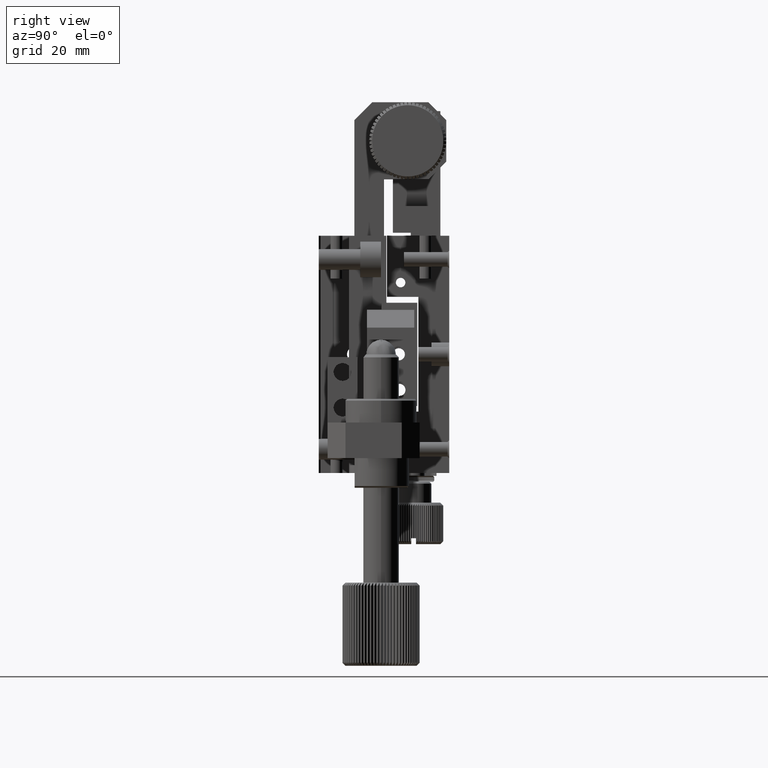
[diagram: clean part render]
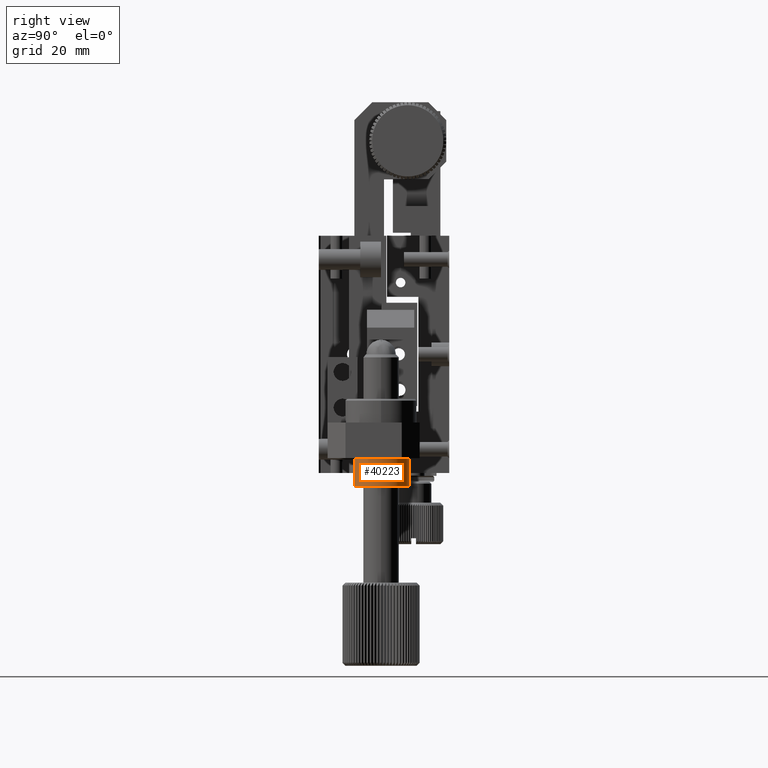
[diagram: same view with one face highlighted and labeled with its STEP entity id]
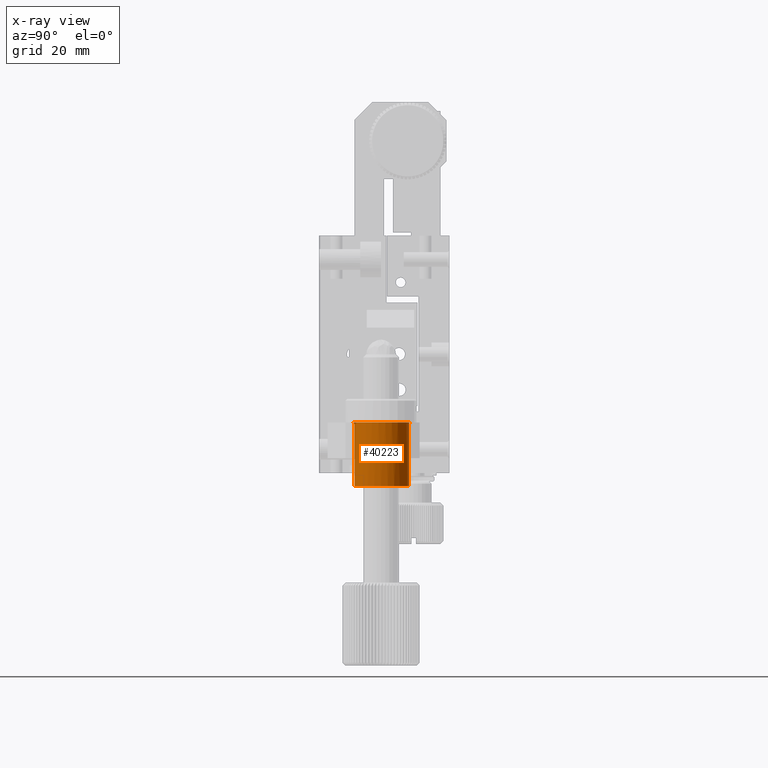
[diagram: x-ray of the same camera — body ghosted, the highlighted face saturated]
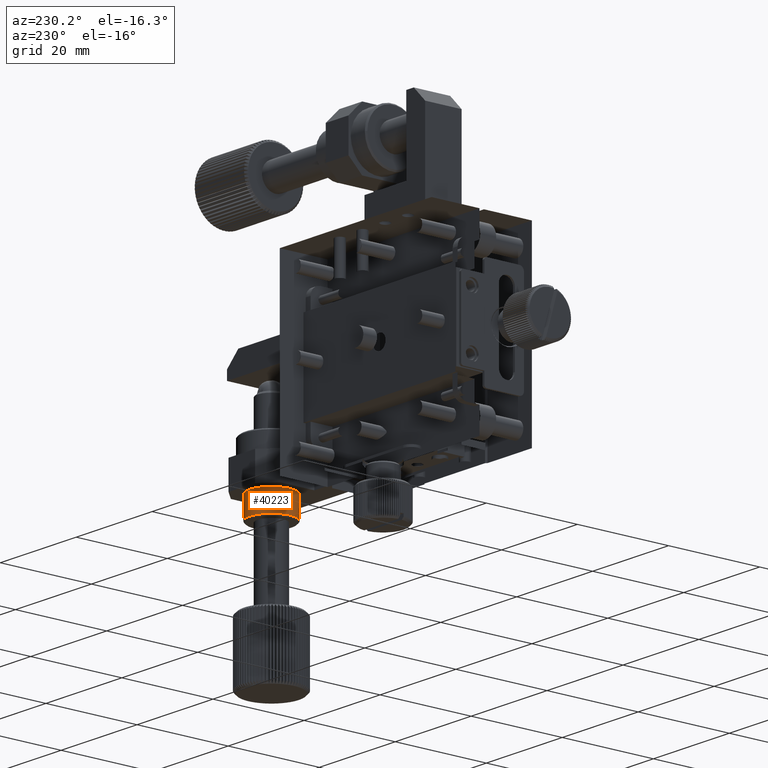
[diagram: same view with one face highlighted and labeled with its STEP entity id]
A machine part, right view. The second image highlights one B-rep face of the part: STEP entity #40223.
The next image is the same camera in x-ray: the body ghosted, the highlighted face saturated — about 0% of this face is hidden behind the body in this view.
A second angle (auxiliary view) of the same face is appended — the face is thin or edge-on in the first view.
In plain terms, the highlighted cylindrical surface (bore or boss wall) has radius 4.75 mm, axis along (0, -0, 1).
Its self-contained STEP definition (entity closure, byte-faithful):
#714 = DIRECTION ( 'NONE',  ( 5.205909424275319562E-16, -9.536762363266488721E-18, 1.000000000000000000 ) ) ;
#898 = CARTESIAN_POINT ( 'NONE',  ( 54.33867522746953682, 6.050000000000010481, -42.19999999995568629 ) ) ;
#2794 = EDGE_CURVE ( 'NONE', #18327, #18327, #15894, .T. ) ;
#6939 = DIRECTION ( 'NONE',  ( 1.000000000000000000, 0.000000000000000000, 0.000000000000000000 ) ) ;
#7868 = CARTESIAN_POINT ( 'NONE',  ( 57.66132477263807488, 6.050000000000011369, -42.50000000002410872 ) ) ;
#8767 = CYLINDRICAL_SURFACE ( 'NONE', #16487, 4.749999999999997335 ) ;
#9229 = DIRECTION ( 'NONE',  ( 5.205909424275319562E-16, -9.536762363266488721E-18, 1.000000000000000000 ) ) ;
#10295 = DIRECTION ( 'NONE',  ( -5.205909424275319562E-16, 9.536762363266488721E-18, -1.000000000000000000 ) ) ;
#10805 = EDGE_CURVE ( 'NONE', #35853, #18327, #24932, .T. ) ;
#12321 = ORIENTED_EDGE ( 'NONE', *, *, #2794, .T. ) ;
#12504 = VERTEX_POINT ( 'NONE', #38122 ) ;
#12622 = AXIS2_PLACEMENT_3D ( 'NONE', #21742, #714, #21988 ) ;
#14385 = DIRECTION ( 'NONE',  ( 5.205909424275319562E-16, -9.536762363266488721E-18, 1.000000000000000000 ) ) ;
#15419 = VECTOR ( 'NONE', #32150, 1000.000000000000000 ) ;
#15894 = CIRCLE ( 'NONE', #19726, 4.749999999999997335 ) ;
#16487 = AXIS2_PLACEMENT_3D ( 'NONE', #41996, #9229, #23831 ) ;
#17501 = CARTESIAN_POINT ( 'NONE',  ( 54.33867522747081580, 6.050000000000012257, -42.50000000002410872 ) ) ;
#18327 = VERTEX_POINT ( 'NONE', #21375 ) ;
#19726 = AXIS2_PLACEMENT_3D ( 'NONE', #24670, #10295, #6939 ) ;
#20474 = FACE_OUTER_BOUND ( 'NONE', #27303, .T. ) ;
#21375 = CARTESIAN_POINT ( 'NONE',  ( 56.14549408977675427, 6.019009100259676615, -31.82531423147452898 ) ) ;
#21742 = CARTESIAN_POINT ( 'NONE',  ( 56.00000000005444178, 10.50000000000000533, -42.19999999995203410 ) ) ;
#21988 = DIRECTION ( 'NONE',  ( 1.000000000000000000, 0.000000000000000000, 0.000000000000000000 ) ) ;
#23295 = EDGE_CURVE ( 'NONE', #12504, #35853, #37076, .T. ) ;
#23831 = DIRECTION ( 'NONE',  ( 1.000000000000000000, 0.000000000000000000, 0.000000000000000000 ) ) ;
#24670 = CARTESIAN_POINT ( 'NONE',  ( 56.00000000005444889, 10.50000000000000533, -31.50000000000000711 ) ) ;
#24932 = LINE ( 'NONE', #17501, #28833 ) ;
#25600 = EDGE_CURVE ( 'NONE', #18327, #12504, #25828, .T. ) ;
#25828 = LINE ( 'NONE', #7868, #15419 ) ;
#27303 = EDGE_LOOP ( 'NONE', ( #41665, #45009, #12321, #45762 ) ) ;
#28833 = VECTOR ( 'NONE', #14385, 1000.000000000000000 ) ;
#32150 = DIRECTION ( 'NONE',  ( -5.205909424275319562E-16, 9.536762363266488721E-18, -1.000000000000000000 ) ) ;
#35853 = VERTEX_POINT ( 'NONE', #898 ) ;
#37076 = CIRCLE ( 'NONE', #12622, 4.749999999999997335 ) ;
#38122 = CARTESIAN_POINT ( 'NONE',  ( 57.66132477264250866, 6.050000000000010481, -42.19999999995459206 ) ) ;
#40223 = ADVANCED_FACE ( 'NONE', ( #20474 ), #8767, .T. ) ;
#41665 = ORIENTED_EDGE ( 'NONE', *, *, #23295, .T. ) ;
#41996 = CARTESIAN_POINT ( 'NONE',  ( 56.00000000005444178, 10.50000000000000533, -42.50000000002410872 ) ) ;
#45009 = ORIENTED_EDGE ( 'NONE', *, *, #10805, .T. ) ;
#45762 = ORIENTED_EDGE ( 'NONE', *, *, #25600, .T. ) ;